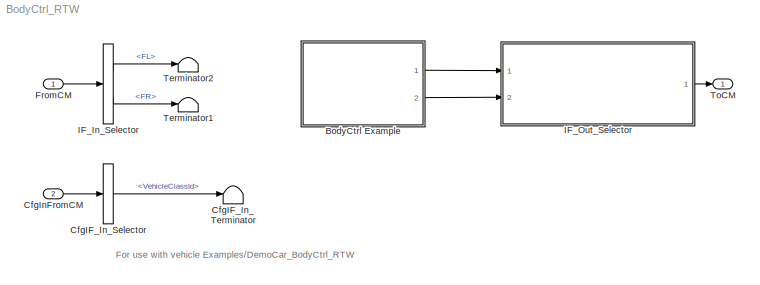
MODEL BodyCtrl_RTW
KIND model
CONFIG InitFcn = vehicle = 'Car'; if ~length(which('cmcmd')), cmenv; end\nBodyCtrl_RTW_bus\nBodyCtrl_RTW_params
CONFIG PreLoadFcn = vehicle = 'Car'; if ~length(which('cmcmd')), cmenv; end\nBodyCtrl_RTW_bus\nBodyCtrl_RTW_params
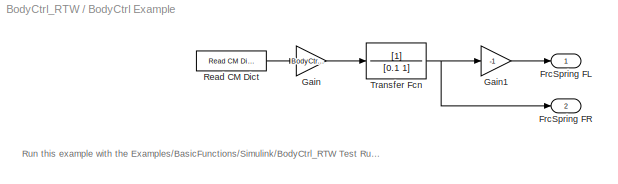
BLOCK [SubSystem] BodyCtrl Example
  Ports = [0, 2]
  RequestExecContextInheritance = off
  SID = 32
BLOCK [Outport] BodyCtrl Example/FrcSpring FL
  SID = 37
  VectorParamsAs1DForOutWhenUnconnected = off
BLOCK [Outport] BodyCtrl Example/FrcSpring FR
  Port = 2
  SID = 38
  VectorParamsAs1DForOutWhenUnconnected = off
BLOCK [Gain] BodyCtrl Example/Gain
  Gain = BodyCtrl_k
  OutDataTypeStr = Inherit: Same as input
  ParamDataTypeStr = Inherit: Same as input
  SID = 33
BLOCK [Gain] BodyCtrl Example/Gain1
  Gain = -1
  SID = 34
BLOCK [Reference] BodyCtrl Example/Read CM Dict  REF=CarMaker4SL/Read CM Dict
  Ports = [0, 1]
  SID = 35
  SourceBlock = CarMaker4SL/Read CM Dict
  SourceProductName = CarMaker4SL
  SourceType = Read CarMaker Dictionary Variable(s)
  xname = Car.ay
  xsync = off
BLOCK [TransferFcn] BodyCtrl Example/Transfer Fcn
  Denominator = [0.1 1]
  SID = 36
BLOCK [BusSelector] CfgIF_In_Selector
  OutputSignals = VehicleClassId
  Ports = [1, 1]
  SID = 9
BLOCK [Terminator] CfgIF_In_Terminator
  SID = 10
BLOCK [Inport] CfgInFromCM
  OutDataTypeStr = Bus: cmSuspExtFrcsCfgIn
  Port = 2
  SID = 8
BLOCK [Inport] FromCM
  OutDataTypeStr = Bus: cmSuspExtFrcsIn
  SID = 1
BLOCK [BusSelector] IF_In_Selector
  OutputSignals = lSpring.FL,lSpring.FR
  Ports = [1, 2]
  SID = 2
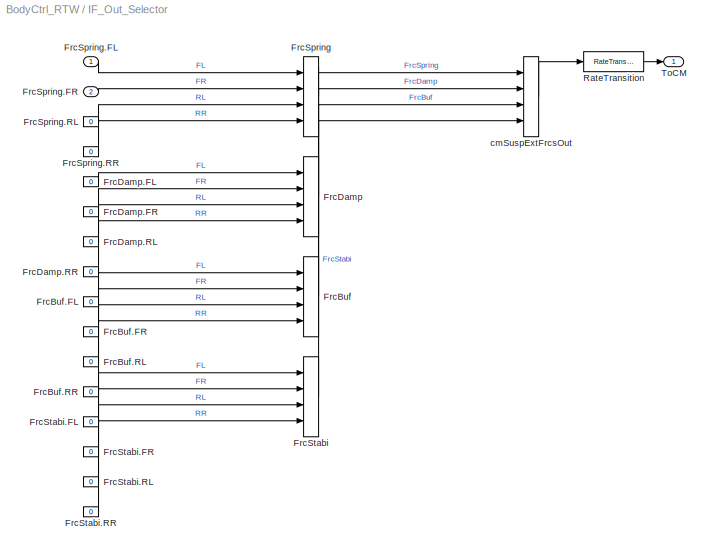
BLOCK [SubSystem] IF_Out_Selector
  OpenFcn = cmSignalSelect('SignalSelection_CB',gcb)
  Ports = [2, 1]
  RequestExecContextInheritance = off
  SID = 5
  UserData = DataTag0
  UserDataPersistent = on
BLOCK [BusCreator] IF_Out_Selector/FrcBuf
  InheritFromInputs = on
  Inputs = 4
  Ports = [4, 1]
  SID = 22
BLOCK [Constant] IF_Out_Selector/FrcBuf.FL
  SID = 23
  Value = 0
BLOCK [Constant] IF_Out_Selector/FrcBuf.FR
  SID = 24
  Value = 0
BLOCK [Constant] IF_Out_Selector/FrcBuf.RL
  SID = 25
  Value = 0
BLOCK [Constant] IF_Out_Selector/FrcBuf.RR
  SID = 26
  Value = 0
BLOCK [BusCreator] IF_Out_Selector/FrcDamp
  InheritFromInputs = on
  Inputs = 4
  Ports = [4, 1]
  SID = 17
BLOCK [Constant] IF_Out_Selector/FrcDamp.FL
  SID = 18
  Value = 0
BLOCK [Constant] IF_Out_Selector/FrcDamp.FR
  SID = 19
  Value = 0
BLOCK [Constant] IF_Out_Selector/FrcDamp.RL
  SID = 20
  Value = 0
BLOCK [Constant] IF_Out_Selector/FrcDamp.RR
  SID = 21
  Value = 0
BLOCK [BusCreator] IF_Out_Selector/FrcSpring
  InheritFromInputs = on
  Inputs = 4
  Ports = [4, 1]
  SID = 12
BLOCK [Inport] IF_Out_Selector/FrcSpring.FL
  SID = 41
BLOCK [Inport] IF_Out_Selector/FrcSpring.FR
  Port = 2
  SID = 42
BLOCK [Constant] IF_Out_Selector/FrcSpring.RL
  SID = 15
  Value = 0
BLOCK [Constant] IF_Out_Selector/FrcSpring.RR
  SID = 16
  Value = 0
BLOCK [BusCreator] IF_Out_Selector/FrcStabi
  InheritFromInputs = on
  Inputs = 4
  Ports = [4, 1]
  SID = 27
BLOCK [Constant] IF_Out_Selector/FrcStabi.FL
  SID = 28
  Value = 0
BLOCK [Constant] IF_Out_Selector/FrcStabi.FR
  SID = 29
  Value = 0
BLOCK [Constant] IF_Out_Selector/FrcStabi.RL
  SID = 30
  Value = 0
BLOCK [Constant] IF_Out_Selector/FrcStabi.RR
  SID = 31
  Value = 0
BLOCK [RateTransition] IF_Out_Selector/RateTransition
  OutPortSampleTime = str2num(get_param(bdroot,'FixedStep'))
  SID = 6
BLOCK [Outport] IF_Out_Selector/ToCM
  SID = 7
  VectorParamsAs1DForOutWhenUnconnected = off
BLOCK [BusCreator] IF_Out_Selector/cmSuspExtFrcsOut
  InheritFromInputs = on
  Inputs = 4
  Ports = [4, 1]
  SID = 11
BLOCK [Terminator] Terminator1
  SID = 39
BLOCK [Terminator] Terminator2
  SID = 40
BLOCK [Outport] ToCM
  OutDataTypeStr = Bus: cmSuspExtFrcsOut
  SID = 4
  VectorParamsAs1DForOutWhenUnconnected = off
ANNOTATION (root): For use with vehicle Examples/DemoCar_BodyCtrl_RTW
ANNOTATION BodyCtrl Example: Run this example with the Examples/BasicFunctions/Simulink/BodyCtrl_RTW Test Run.
LINE BodyCtrl Example/Gain1:1 -> BodyCtrl Example/FrcSpring FL:1
LINE BodyCtrl Example/Gain:1 -> BodyCtrl Example/Transfer Fcn:1
LINE BodyCtrl Example/Read CM Dict:1 -> BodyCtrl Example/Gain:1
NET BodyCtrl Example/Transfer Fcn:1 -> BodyCtrl Example/FrcSpring FR:1, BodyCtrl Example/Gain1:1
LINE BodyCtrl Example:1 -> IF_Out_Selector:1
LINE BodyCtrl Example:2 -> IF_Out_Selector:2
LINE CfgIF_In_Selector:1 -> CfgIF_In_Terminator:1
LINE CfgInFromCM:1 -> CfgIF_In_Selector:1
LINE FromCM:1 -> IF_In_Selector:1
LINE IF_In_Selector:1 -> Terminator2:1
LINE IF_In_Selector:2 -> Terminator1:1
LINE IF_Out_Selector/FrcBuf.FL:1 -> IF_Out_Selector/FrcBuf:1
LINE IF_Out_Selector/FrcBuf.FR:1 -> IF_Out_Selector/FrcBuf:2
LINE IF_Out_Selector/FrcBuf.RL:1 -> IF_Out_Selector/FrcBuf:3
LINE IF_Out_Selector/FrcBuf.RR:1 -> IF_Out_Selector/FrcBuf:4
LINE IF_Out_Selector/FrcBuf:1 -> IF_Out_Selector/cmSuspExtFrcsOut:3
LINE IF_Out_Selector/FrcDamp.FL:1 -> IF_Out_Selector/FrcDamp:1
LINE IF_Out_Selector/FrcDamp.FR:1 -> IF_Out_Selector/FrcDamp:2
LINE IF_Out_Selector/FrcDamp.RL:1 -> IF_Out_Selector/FrcDamp:3
LINE IF_Out_Selector/FrcDamp.RR:1 -> IF_Out_Selector/FrcDamp:4
LINE IF_Out_Selector/FrcDamp:1 -> IF_Out_Selector/cmSuspExtFrcsOut:2
LINE IF_Out_Selector/FrcSpring.FL:1 -> IF_Out_Selector/FrcSpring:1
LINE IF_Out_Selector/FrcSpring.FR:1 -> IF_Out_Selector/FrcSpring:2
LINE IF_Out_Selector/FrcSpring.RL:1 -> IF_Out_Selector/FrcSpring:3
LINE IF_Out_Selector/FrcSpring.RR:1 -> IF_Out_Selector/FrcSpring:4
LINE IF_Out_Selector/FrcSpring:1 -> IF_Out_Selector/cmSuspExtFrcsOut:1
LINE IF_Out_Selector/FrcStabi.FL:1 -> IF_Out_Selector/FrcStabi:1
LINE IF_Out_Selector/FrcStabi.FR:1 -> IF_Out_Selector/FrcStabi:2
LINE IF_Out_Selector/FrcStabi.RL:1 -> IF_Out_Selector/FrcStabi:3
LINE IF_Out_Selector/FrcStabi.RR:1 -> IF_Out_Selector/FrcStabi:4
LINE IF_Out_Selector/FrcStabi:1 -> IF_Out_Selector/cmSuspExtFrcsOut:4
LINE IF_Out_Selector/RateTransition:1 -> IF_Out_Selector/ToCM:1
LINE IF_Out_Selector/cmSuspExtFrcsOut:1 -> IF_Out_Selector/RateTransition:1
LINE IF_Out_Selector:1 -> ToCM:1
note: NET lines group one-source signal fan-out (src -> all destinations, sorted); 1:1 wires keep LINE
